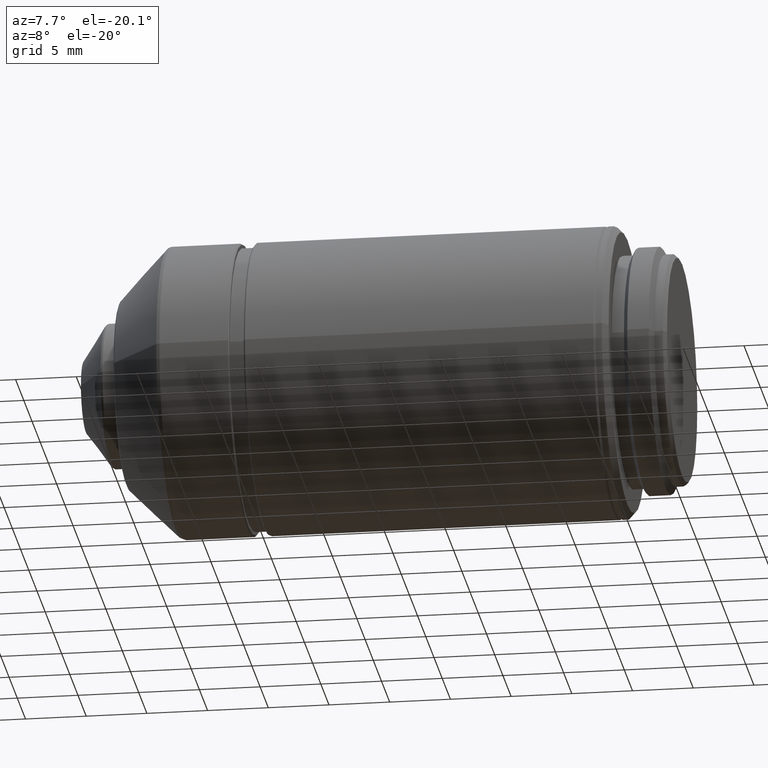
[diagram: clean part render]
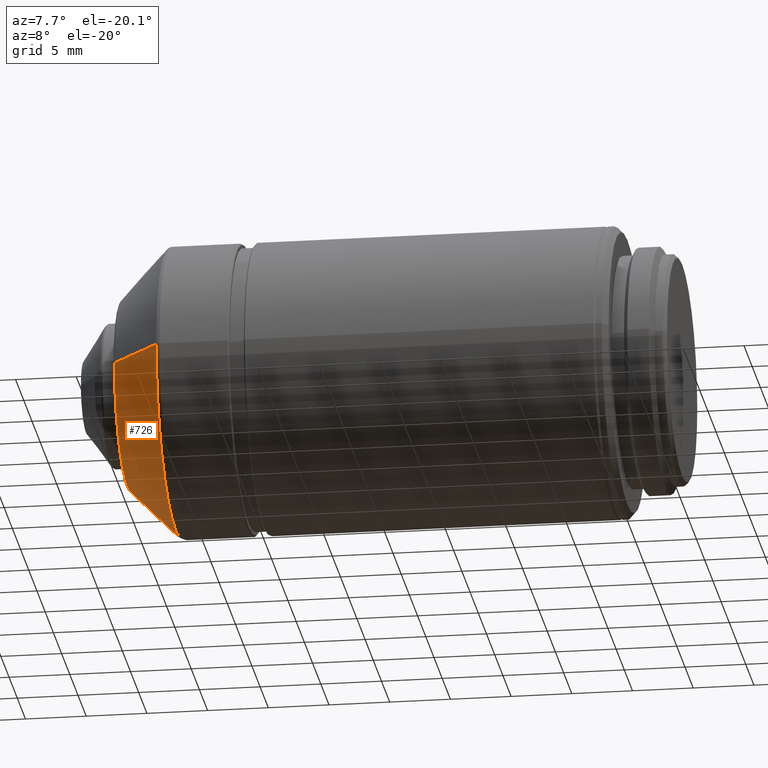
[diagram: same view with one face highlighted and labeled with its STEP entity id]
A machine part, auxiliary view. The second image highlights one B-rep face of the part: STEP entity #726.
In plain terms, the highlighted conical surface has half-angle 45 deg.
Its self-contained STEP definition (entity closure, byte-faithful):
#31 = DIRECTION ( 'NONE',  ( 0.000000000000000000, 1.000000000000000000, 0.000000000000000000 ) ) ;
#79 = LINE ( 'NONE', #1158, #1189 ) ;
#91 = CARTESIAN_POINT ( 'NONE',  ( 3.799999613208079996, 0.000000000000000000, 0.000000000000000000 ) ) ;
#104 = CARTESIAN_POINT ( 'NONE',  ( 7.785548921157119828, 0.000000000000000000, 0.000000000000000000 ) ) ;
#314 = CARTESIAN_POINT ( 'NONE',  ( 3.799999613208079996, 7.914450692050960079, -9.692406707029758688E-16 ) ) ;
#376 = EDGE_CURVE ( 'NONE', #432, #896, #79, .T. ) ;
#391 = CONICAL_SURFACE ( 'NONE', #1107, 11.90000000000000036, 0.7853981633974490562 ) ;
#432 = VERTEX_POINT ( 'NONE', #848 ) ;
#469 = DIRECTION ( 'NONE',  ( 0.7071067811865470176, -0.7071067811865480168, 0.000000000000000000 ) ) ;
#513 = DIRECTION ( 'NONE',  ( 0.000000000000000000, -1.000000000000000000, 0.000000000000000000 ) ) ;
#586 = LINE ( 'NONE', #1175, #1061 ) ;
#591 = DIRECTION ( 'NONE',  ( 1.000000000000000000, 0.000000000000000000, 0.000000000000000000 ) ) ;
#666 = ORIENTED_EDGE ( 'NONE', *, *, #790, .F. ) ;
#681 = EDGE_CURVE ( 'NONE', #432, #826, #936, .T. ) ;
#708 = ORIENTED_EDGE ( 'NONE', *, *, #710, .T. ) ;
#710 = EDGE_CURVE ( 'NONE', #826, #1269, #586, .T. ) ;
#726 = ADVANCED_FACE ( 'NONE', ( #976 ), #391, .T. ) ;
#765 = DIRECTION ( 'NONE',  ( 0.000000000000000000, 1.000000000000000000, 0.000000000000000000 ) ) ;
#790 = EDGE_CURVE ( 'NONE', #896, #1269, #1211, .T. ) ;
#826 = VERTEX_POINT ( 'NONE', #314 ) ;
#848 = CARTESIAN_POINT ( 'NONE',  ( 3.799999613208079996, -7.914450692050949421, 0.000000000000000000 ) ) ;
#881 = CARTESIAN_POINT ( 'NONE',  ( 7.785548921157129598, 11.90000000000000036, -1.457329690985349999E-15 ) ) ;
#894 = CARTESIAN_POINT ( 'NONE',  ( 7.785548921157119828, 0.000000000000000000, 0.000000000000000000 ) ) ;
#896 = VERTEX_POINT ( 'NONE', #1133 ) ;
#919 = AXIS2_PLACEMENT_3D ( 'NONE', #104, #1080, #31 ) ;
#936 = CIRCLE ( 'NONE', #1275, 7.914450692050949421 ) ;
#976 = FACE_OUTER_BOUND ( 'NONE', #1173, .T. ) ;
#1000 = DIRECTION ( 'NONE',  ( 0.7071067811865470176, 0.7071067811865480168, -8.659560562354939021E-17 ) ) ;
#1004 = ORIENTED_EDGE ( 'NONE', *, *, #681, .T. ) ;
#1054 = ORIENTED_EDGE ( 'NONE', *, *, #376, .F. ) ;
#1061 = VECTOR ( 'NONE', #1000, 1000.000000000000000 ) ;
#1080 = DIRECTION ( 'NONE',  ( 1.000000000000000000, 0.000000000000000000, 0.000000000000000000 ) ) ;
#1107 = AXIS2_PLACEMENT_3D ( 'NONE', #894, #591, #513 ) ;
#1133 = CARTESIAN_POINT ( 'NONE',  ( 7.785548921157119828, -11.90000000000000036, 0.000000000000000000 ) ) ;
#1158 = CARTESIAN_POINT ( 'NONE',  ( 7.785548921157119828, -11.90000000000000036, 0.000000000000000000 ) ) ;
#1160 = DIRECTION ( 'NONE',  ( 1.000000000000000000, 0.000000000000000000, 0.000000000000000000 ) ) ;
#1173 = EDGE_LOOP ( 'NONE', ( #1004, #708, #666, #1054 ) ) ;
#1175 = CARTESIAN_POINT ( 'NONE',  ( 7.785548921157119828, 11.90000000000000036, -1.457329690985349999E-15 ) ) ;
#1189 = VECTOR ( 'NONE', #469, 1000.000000000000000 ) ;
#1211 = CIRCLE ( 'NONE', #919, 11.90000000000000036 ) ;
#1269 = VERTEX_POINT ( 'NONE', #881 ) ;
#1275 = AXIS2_PLACEMENT_3D ( 'NONE', #91, #1160, #765 ) ;